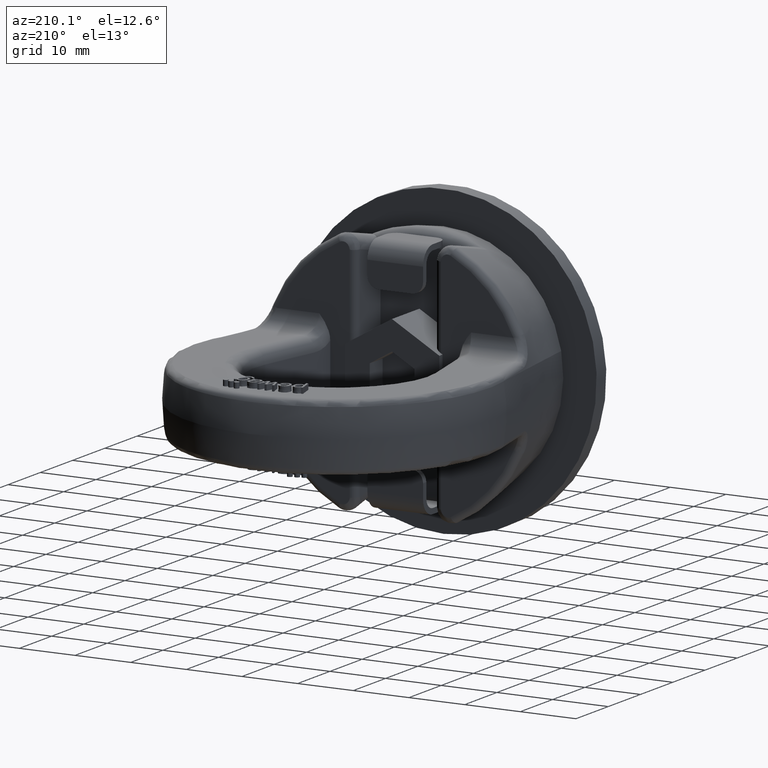
[diagram: clean part render]
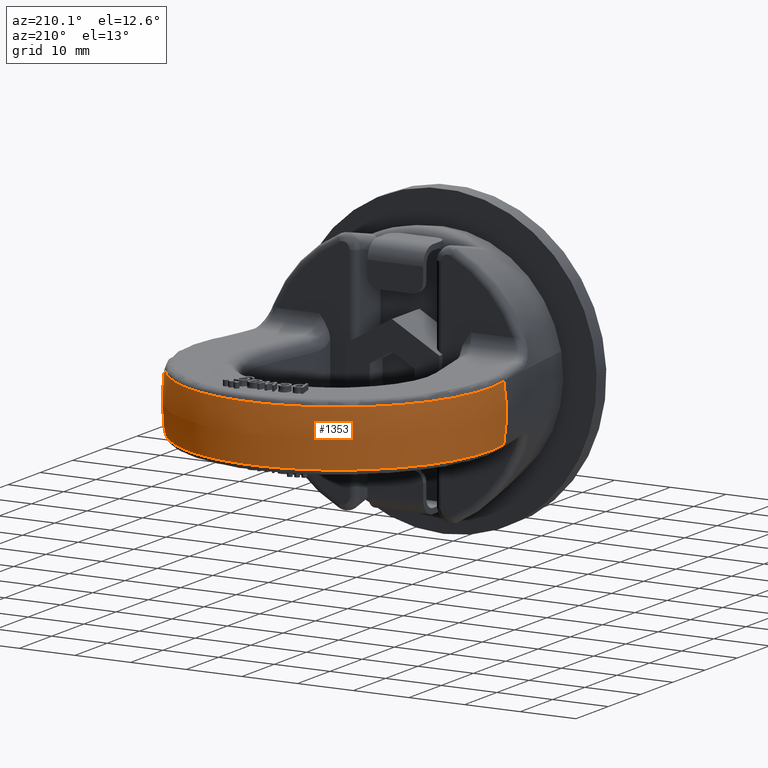
[diagram: same view with one face highlighted and labeled with its STEP entity id]
A machine part, auxiliary view. The second image highlights one B-rep face of the part: STEP entity #1353.
In plain terms, the highlighted spherical surface has radius 27.5 mm.
Its self-contained STEP definition (entity closure, byte-faithful):
#1125=SPHERICAL_SURFACE('',#5193,27.5);
#1132=FACE_OUTER_BOUND('',#1871,.T.);
#1353=ADVANCED_FACE('',(#1132),#1125,.T.);
#1714=CIRCLE('',#5181,26.9573970200514);
#1718=CIRCLE('',#5185,26.9573970200514);
#1723=CIRCLE('',#5191,27.0381124433265);
#1724=CIRCLE('',#5192,27.0381124433265);
#1871=EDGE_LOOP('',(#2874,#2875,#2876,#2877));
#2874=ORIENTED_EDGE('',*,*,#4418,.F.);
#2875=ORIENTED_EDGE('',*,*,#4439,.T.);
#2876=ORIENTED_EDGE('',*,*,#4428,.F.);
#2877=ORIENTED_EDGE('',*,*,#4440,.T.);
#4027=VERTEX_POINT('',#6795);
#4028=VERTEX_POINT('',#6796);
#4037=VERTEX_POINT('',#6848);
#4038=VERTEX_POINT('',#6850);
#4418=EDGE_CURVE('',#4027,#4028,#1714,.T.);
#4428=EDGE_CURVE('',#4037,#4038,#1718,.T.);
#4439=EDGE_CURVE('',#4027,#4038,#1723,.T.);
#4440=EDGE_CURVE('',#4037,#4028,#1724,.T.);
#5181=AXIS2_PLACEMENT_3D('',#6794,#5530,#5531);
#5185=AXIS2_PLACEMENT_3D('',#6849,#5538,#5539);
#5191=AXIS2_PLACEMENT_3D('',#6905,#5550,#5551);
#5192=AXIS2_PLACEMENT_3D('',#6906,#5552,#5553);
#5193=AXIS2_PLACEMENT_3D('',#6907,#5554,#5555);
#5530=DIRECTION('',(-2.02227779131275E-15,-1.,0.));
#5531=DIRECTION('',(1.,-2.05921777944539E-15,0.));
#5538=DIRECTION('',(-2.02227779131275E-15,-1.,0.));
#5539=DIRECTION('',(1.,-2.05921777944539E-15,0.));
#5550=DIRECTION('',(0.,-1.5770213417971E-16,-1.));
#5551=DIRECTION('',(0.,1.,-1.60396133385133E-16));
#5552=DIRECTION('',(-2.34291072916505E-15,-1.5770213417971E-16,1.));
#5553=DIRECTION('',(-3.41904922262442E-31,1.,1.60396133385133E-16));
#5554=DIRECTION('',(-1.96104545135538E-15,-1.,0.));
#5555=DIRECTION('',(1.,-2.01858731750028E-15,0.));
#6794=CARTESIAN_POINT('',(-6.66054902031739E-14,30.0641241824955,0.));
#6795=CARTESIAN_POINT('',(-26.4860487539128,30.0641241824956,5.01901140684413));
#6796=CARTESIAN_POINT('',(-26.4860487539127,30.0641241824955,-5.01901140684418));
#6848=CARTESIAN_POINT('',(26.4860487539128,30.0641241824956,-5.01901140684407));
#6849=CARTESIAN_POINT('',(-6.66054902031739E-14,30.0641241824955,0.));
#6850=CARTESIAN_POINT('',(26.4860487539127,30.0641241824955,5.01901140684411));
#6905=CARTESIAN_POINT('',(-1.38050658413677E-30,35.5,5.01901140684411));
#6906=CARTESIAN_POINT('',(1.17590956748968E-14,35.5,-5.01901140684411));
#6907=CARTESIAN_POINT('',(-1.38050658413677E-30,35.5,0.));